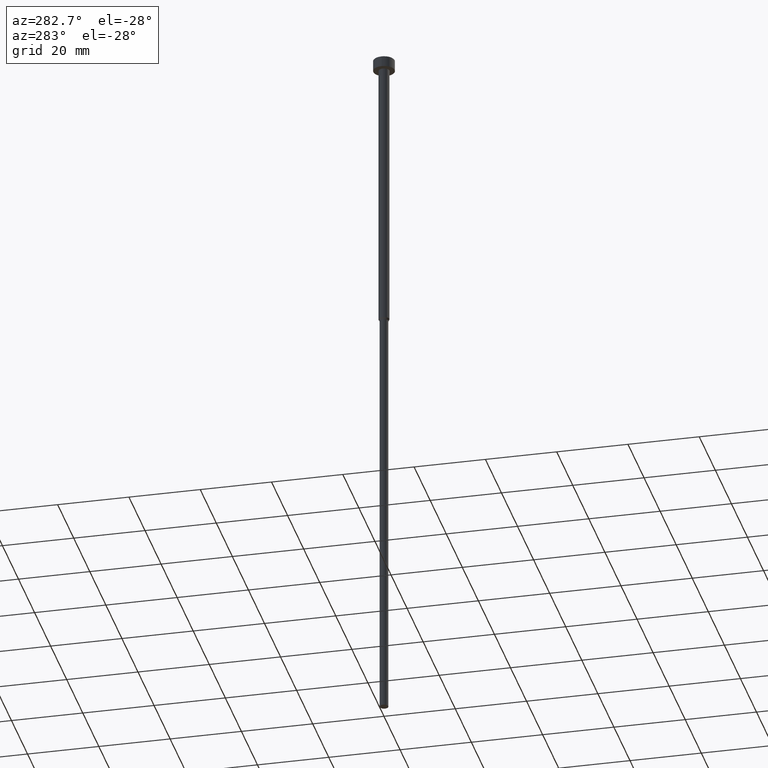
[diagram: clean part render]
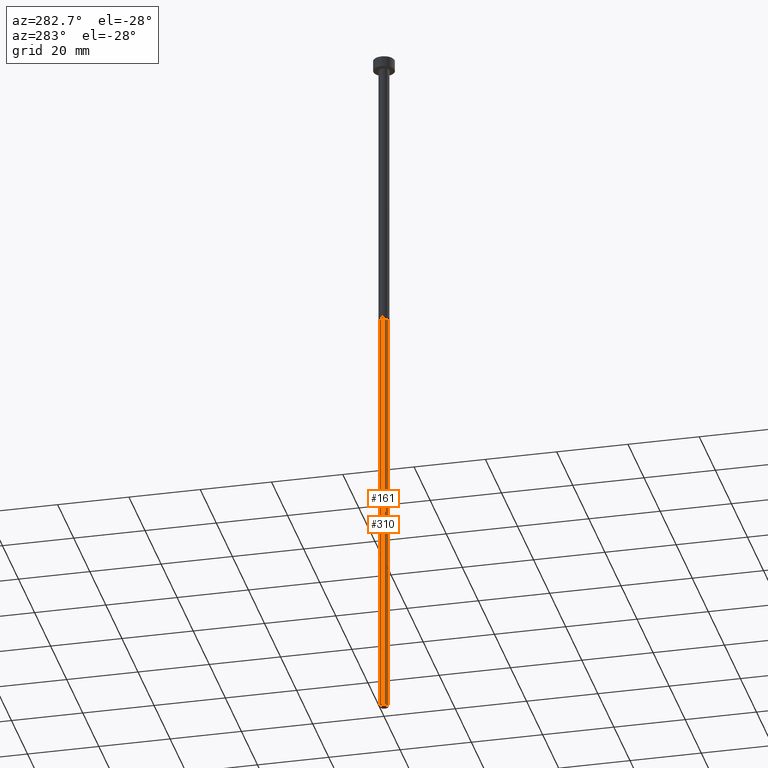
[diagram: same view with one multi-face feature highlighted, each face labeled with its STEP entity id]
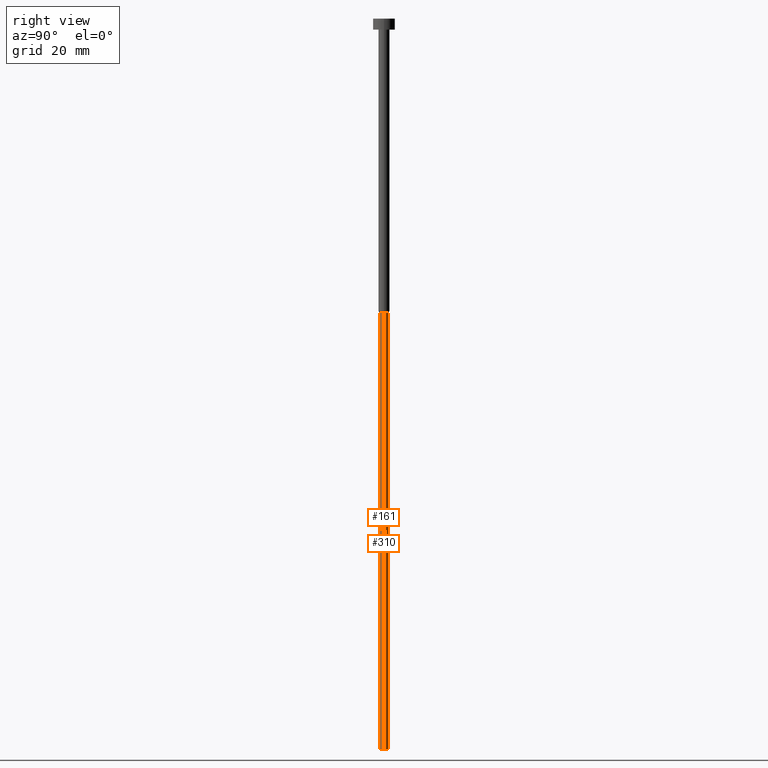
[diagram: same view with one multi-face feature highlighted, each face labeled with its STEP entity id]
A machine part, auxiliary view. The highlighted faces form ONE feature: a constant-radius fillet chain: 2 tangent blend faces with common blend radius 1.2 mm. The faces share edges in the B-rep.
A second angle (right view) of the same feature is appended — it is thin or edge-on in the first view.
Their STEP definitions:
[1] entity #310 (Cylinder):
#9 = DIRECTION ( 'NONE',  ( 1.000000000000000000, 0.000000000000000000, 0.000000000000000000 ) ) ;
#19 = CARTESIAN_POINT ( 'NONE',  ( 0.000000000000000000, 0.000000000000000000, -200.0000000000000000 ) ) ;
#27 = CARTESIAN_POINT ( 'NONE',  ( 0.000000000000000000, 0.000000000000000000, 0.000000000000000000 ) ) ;
#29 = EDGE_CURVE ( 'NONE', #265, #62, #202, .T. ) ;
#31 = EDGE_LOOP ( 'NONE', ( #305, #224, #249, #269 ) ) ;
#51 = DIRECTION ( 'NONE',  ( 1.000000000000000000, 0.000000000000000000, 0.000000000000000000 ) ) ;
#58 = AXIS2_PLACEMENT_3D ( 'NONE', #27, #318, #51 ) ;
#62 = VERTEX_POINT ( 'NONE', #188 ) ;
#71 = DIRECTION ( 'NONE',  ( -0.000000000000000000, -0.000000000000000000, 1.000000000000000000 ) ) ;
#117 = VERTEX_POINT ( 'NONE', #254 ) ;
#141 = EDGE_CURVE ( 'NONE', #265, #288, #200, .T. ) ;
#145 = AXIS2_PLACEMENT_3D ( 'NONE', #19, #153, #9 ) ;
#153 = DIRECTION ( 'NONE',  ( -0.000000000000000000, -0.000000000000000000, 1.000000000000000000 ) ) ;
#154 = CARTESIAN_POINT ( 'NONE',  ( 0.000000000000000000, 0.000000000000000000, -80.51961524227066036 ) ) ;
#158 = VECTOR ( 'NONE', #266, 1000.000000000000000 ) ;
#188 = CARTESIAN_POINT ( 'NONE',  ( 1.199999999999999956, 0.000000000000000000, -80.51961524227066036 ) ) ;
#200 = CIRCLE ( 'NONE', #145, 1.199999999999999956 ) ;
#202 = LINE ( 'NONE', #311, #158 ) ;
#203 = CARTESIAN_POINT ( 'NONE',  ( -1.199999999999999956, 1.469576158976823553E-16, -200.0000000000000000 ) ) ;
#208 = VECTOR ( 'NONE', #71, 1000.000000000000000 ) ;
#211 = CYLINDRICAL_SURFACE ( 'NONE', #58, 1.199999999999999956 ) ;
#217 = FACE_OUTER_BOUND ( 'NONE', #31, .T. ) ;
#224 = ORIENTED_EDGE ( 'NONE', *, *, #258, .T. ) ;
#229 = CARTESIAN_POINT ( 'NONE',  ( 1.199999999999999956, 0.000000000000000000, -200.0000000000000000 ) ) ;
#233 = AXIS2_PLACEMENT_3D ( 'NONE', #154, #270, #330 ) ;
#237 = LINE ( 'NONE', #336, #208 ) ;
#249 = ORIENTED_EDGE ( 'NONE', *, *, #306, .F. ) ;
#254 = CARTESIAN_POINT ( 'NONE',  ( -1.199999999999999956, 1.469576158976823553E-16, -80.51961524227066036 ) ) ;
#258 = EDGE_CURVE ( 'NONE', #288, #117, #237, .T. ) ;
#265 = VERTEX_POINT ( 'NONE', #229 ) ;
#266 = DIRECTION ( 'NONE',  ( -0.000000000000000000, -0.000000000000000000, 1.000000000000000000 ) ) ;
#269 = ORIENTED_EDGE ( 'NONE', *, *, #29, .F. ) ;
#270 = DIRECTION ( 'NONE',  ( -0.000000000000000000, -0.000000000000000000, 1.000000000000000000 ) ) ;
#280 = CIRCLE ( 'NONE', #233, 1.199999999999999956 ) ;
#288 = VERTEX_POINT ( 'NONE', #203 ) ;
#305 = ORIENTED_EDGE ( 'NONE', *, *, #141, .T. ) ;
#306 = EDGE_CURVE ( 'NONE', #62, #117, #280, .T. ) ;
#310 = ADVANCED_FACE ( 'NONE', ( #217 ), #211, .T. ) ;
#311 = CARTESIAN_POINT ( 'NONE',  ( 1.199999999999999956, 0.000000000000000000, 0.000000000000000000 ) ) ;
#318 = DIRECTION ( 'NONE',  ( -0.000000000000000000, -0.000000000000000000, 1.000000000000000000 ) ) ;
#330 = DIRECTION ( 'NONE',  ( 1.000000000000000000, 0.000000000000000000, 0.000000000000000000 ) ) ;
#336 = CARTESIAN_POINT ( 'NONE',  ( -1.199999999999999956, 1.469576158976823553E-16, 0.000000000000000000 ) ) ;
[2] entity #161 (Cylinder):
#29 = EDGE_CURVE ( 'NONE', #265, #62, #202, .T. ) ;
#37 = DIRECTION ( 'NONE',  ( 1.000000000000000000, 0.000000000000000000, 0.000000000000000000 ) ) ;
#38 = ORIENTED_EDGE ( 'NONE', *, *, #258, .F. ) ;
#40 = CYLINDRICAL_SURFACE ( 'NONE', #108, 1.199999999999999956 ) ;
#53 = DIRECTION ( 'NONE',  ( 1.000000000000000000, 0.000000000000000000, 0.000000000000000000 ) ) ;
#62 = VERTEX_POINT ( 'NONE', #188 ) ;
#68 = EDGE_LOOP ( 'NONE', ( #38, #94, #151, #147 ) ) ;
#71 = DIRECTION ( 'NONE',  ( -0.000000000000000000, -0.000000000000000000, 1.000000000000000000 ) ) ;
#94 = ORIENTED_EDGE ( 'NONE', *, *, #319, .T. ) ;
#108 = AXIS2_PLACEMENT_3D ( 'NONE', #340, #134, #232 ) ;
#117 = VERTEX_POINT ( 'NONE', #254 ) ;
#134 = DIRECTION ( 'NONE',  ( -0.000000000000000000, -0.000000000000000000, 1.000000000000000000 ) ) ;
#147 = ORIENTED_EDGE ( 'NONE', *, *, #264, .F. ) ;
#151 = ORIENTED_EDGE ( 'NONE', *, *, #29, .T. ) ;
#158 = VECTOR ( 'NONE', #266, 1000.000000000000000 ) ;
#161 = ADVANCED_FACE ( 'NONE', ( #240 ), #40, .T. ) ;
#170 = AXIS2_PLACEMENT_3D ( 'NONE', #321, #247, #53 ) ;
#188 = CARTESIAN_POINT ( 'NONE',  ( 1.199999999999999956, 0.000000000000000000, -80.51961524227066036 ) ) ;
#191 = AXIS2_PLACEMENT_3D ( 'NONE', #292, #315, #37 ) ;
#202 = LINE ( 'NONE', #311, #158 ) ;
#203 = CARTESIAN_POINT ( 'NONE',  ( -1.199999999999999956, 1.469576158976823553E-16, -200.0000000000000000 ) ) ;
#208 = VECTOR ( 'NONE', #71, 1000.000000000000000 ) ;
#223 = CIRCLE ( 'NONE', #170, 1.199999999999999956 ) ;
#229 = CARTESIAN_POINT ( 'NONE',  ( 1.199999999999999956, 0.000000000000000000, -200.0000000000000000 ) ) ;
#232 = DIRECTION ( 'NONE',  ( 1.000000000000000000, 0.000000000000000000, 0.000000000000000000 ) ) ;
#237 = LINE ( 'NONE', #336, #208 ) ;
#240 = FACE_OUTER_BOUND ( 'NONE', #68, .T. ) ;
#247 = DIRECTION ( 'NONE',  ( -0.000000000000000000, -0.000000000000000000, 1.000000000000000000 ) ) ;
#254 = CARTESIAN_POINT ( 'NONE',  ( -1.199999999999999956, 1.469576158976823553E-16, -80.51961524227066036 ) ) ;
#258 = EDGE_CURVE ( 'NONE', #288, #117, #237, .T. ) ;
#264 = EDGE_CURVE ( 'NONE', #117, #62, #339, .T. ) ;
#265 = VERTEX_POINT ( 'NONE', #229 ) ;
#266 = DIRECTION ( 'NONE',  ( -0.000000000000000000, -0.000000000000000000, 1.000000000000000000 ) ) ;
#288 = VERTEX_POINT ( 'NONE', #203 ) ;
#292 = CARTESIAN_POINT ( 'NONE',  ( 0.000000000000000000, 0.000000000000000000, -80.51961524227066036 ) ) ;
#311 = CARTESIAN_POINT ( 'NONE',  ( 1.199999999999999956, 0.000000000000000000, 0.000000000000000000 ) ) ;
#315 = DIRECTION ( 'NONE',  ( -0.000000000000000000, -0.000000000000000000, 1.000000000000000000 ) ) ;
#319 = EDGE_CURVE ( 'NONE', #288, #265, #223, .T. ) ;
#321 = CARTESIAN_POINT ( 'NONE',  ( 0.000000000000000000, 0.000000000000000000, -200.0000000000000000 ) ) ;
#336 = CARTESIAN_POINT ( 'NONE',  ( -1.199999999999999956, 1.469576158976823553E-16, 0.000000000000000000 ) ) ;
#339 = CIRCLE ( 'NONE', #191, 1.199999999999999956 ) ;
#340 = CARTESIAN_POINT ( 'NONE',  ( 0.000000000000000000, 0.000000000000000000, 0.000000000000000000 ) ) ;